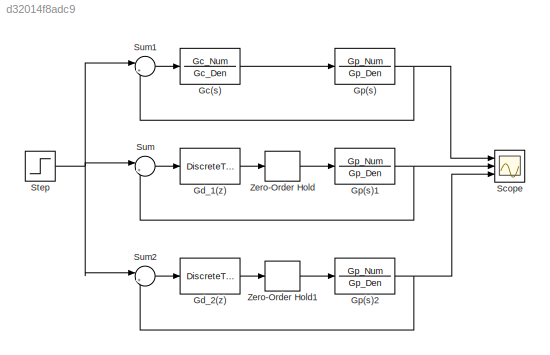
MODEL slx_d32014f8adc9
KIND model
CONFIG AbsTol = auto
CONFIG EnableMultiTasking = off
CONFIG FixedStep = 1e-2
CONFIG MaxStep = auto
CONFIG MinStep = auto
CONFIG RelTol = 1e-3
CONFIG SampleTimeConstraint = Unconstrained
CONFIG SolverName = FixedStepAuto
CONFIG StartTime = 0.0
CONFIG StopTime = 600
BLOCK [TransferFcn] Gc(s)
  Denominator = Gc_Den
  Numerator = Gc_Num
BLOCK [DiscreteTransferFcn] Gd_1(z)
  Denominator = Gd_Den_1
  InputPortMap = u0
  Numerator = Gd_Num_1
  Ports = [1, 1]
  SampleTime = Ts
BLOCK [DiscreteTransferFcn] Gd_2(z)
  Denominator = Gd_Den_2
  InputPortMap = u0
  Numerator = Gd_Num_2
  Ports = [1, 1]
  SampleTime = Ts
BLOCK [TransferFcn] Gp(s)
  Denominator = Gp_Den
  Numerator = Gp_Num
BLOCK [TransferFcn] Gp(s)1
  Denominator = Gp_Den
  Numerator = Gp_Num
BLOCK [TransferFcn] Gp(s)2
  Denominator = Gp_Den
  Numerator = Gp_Num
BLOCK [Scope] Scope
  Floating = off
  NumInputPorts = 3
  Ports = [3]
  ScopeSpecificationString = Simulink.scopes.TimeScopeBlockCfg('CurrentConfiguration', extmgr.ConfigurationSet(extmgr.Configuration('Core','General UI',true),extmgr.Configuration('Core','Source UI',true),extmgr.Configuration('Sources','WiredSimulink',true),extmgr.Configuration('Visuals','Time Domain',true,'SerializedDisplays',{struct('MinYLimReal','-0.17503','MaxYLimReal','1.57528','YLabelReal','','MinYLimMag','0.00000','MaxY...<+1415ch>
BLOCK [Step] Step
  SampleTime = 0
BLOCK [Sum] Sum
  Inputs = |+-
  Ports = [2, 1]
BLOCK [Sum] Sum1
  Inputs = |+-
  Ports = [2, 1]
BLOCK [Sum] Sum2
  Inputs = |+-
  Ports = [2, 1]
BLOCK [ZeroOrderHold] Zero-Order Hold
  SampleTime = Ts
BLOCK [ZeroOrderHold] Zero-Order Hold1
  SampleTime = Ts
LINE Gc(s):1 -> Gp(s):1
LINE Gd_1(z):1 -> Zero-Order Hold:1
LINE Gd_2(z):1 -> Zero-Order Hold1:1
NET Gp(s)1:1 -> Scope:2, Sum:2
NET Gp(s)2:1 -> Scope:3, Sum2:2
NET Gp(s):1 -> Scope:1, Sum1:2
NET Step:1 -> Sum1:1, Sum2:1, Sum:1
LINE Sum1:1 -> Gc(s):1
LINE Sum2:1 -> Gd_2(z):1
LINE Sum:1 -> Gd_1(z):1
LINE Zero-Order Hold1:1 -> Gp(s)2:1
LINE Zero-Order Hold:1 -> Gp(s)1:1
note: NET lines group one-source signal fan-out (src -> all destinations, sorted); 1:1 wires keep LINE
